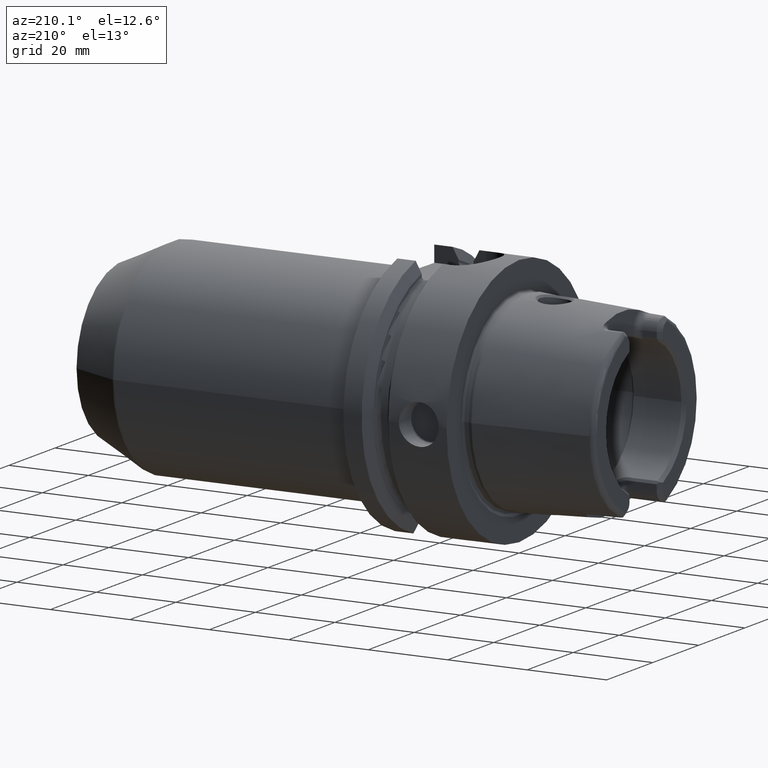
[diagram: clean part render]
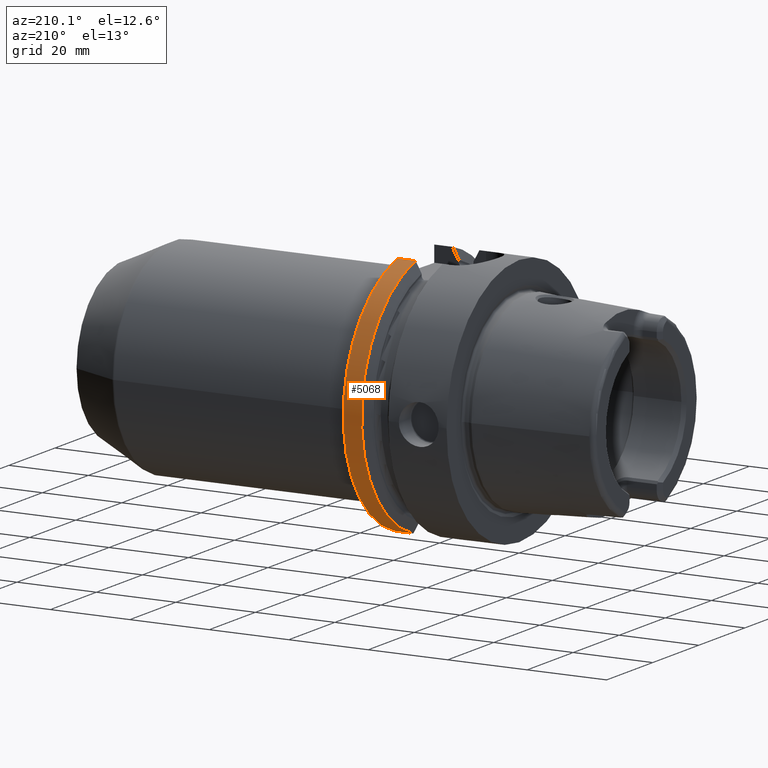
[diagram: same view with one face highlighted and labeled with its STEP entity id]
A machine part, auxiliary view. The second image highlights one B-rep face of the part: STEP entity #5068.
In plain terms, the highlighted cylindrical surface (partial cylindrical patch) has radius 31.5 mm, axis along (1, 0, 0).
Its self-contained STEP definition (entity closure, byte-faithful):
#1324=DIRECTION('',(-1.E0,0.E0,0.E0));
#1325=VECTOR('',#1324,4.622500925241E0);
#1326=CARTESIAN_POINT('',(2.6E1,9.0175E0,-3.018169467989E1));
#1327=LINE('',#1326,#1325);
#1624=DIRECTION('',(1.E0,0.E0,0.E0));
#1625=VECTOR('',#1624,4.622500925241E0);
#1626=CARTESIAN_POINT('',(2.137749907476E1,8.0175E0,3.046259499370E1));
#1627=LINE('',#1626,#1625);
#1632=CARTESIAN_POINT('',(2.6E1,0.E0,0.E0));
#1633=DIRECTION('',(1.E0,0.E0,0.E0));
#1634=DIRECTION('',(0.E0,2.862698412698E-1,-9.581490374568E-1));
#1635=AXIS2_PLACEMENT_3D('',#1632,#1633,#1634);
#1743=CARTESIAN_POINT('',(2.137749907476E1,9.0175E0,-3.018169467989E1));
#1750=CARTESIAN_POINT('',(2.137749907476E1,0.E0,0.E0));
#1751=DIRECTION('',(1.E0,0.E0,0.E0));
#1752=DIRECTION('',(0.E0,2.862698412698E-1,-9.581490374568E-1));
#1753=AXIS2_PLACEMENT_3D('',#1750,#1751,#1752);
#1760=CARTESIAN_POINT('',(2.137749907476E1,8.0175E0,3.046259499370E1));
#3187=VERTEX_POINT('',#1760);
#3216=VERTEX_POINT('',#1743);
#3218=CARTESIAN_POINT('',(2.6E1,9.0175E0,-3.018169467989E1));
#3219=CARTESIAN_POINT('',(2.6E1,8.0175E0,3.046259499370E1));
#3220=VERTEX_POINT('',#3218);
#3221=VERTEX_POINT('',#3219);
#5056=CARTESIAN_POINT('',(-3.49E1,0.E0,0.E0));
#5057=DIRECTION('',(1.E0,0.E0,0.E0));
#5058=DIRECTION('',(0.E0,-1.E0,0.E0));
#5059=AXIS2_PLACEMENT_3D('',#5056,#5057,#5058);
#5060=CYLINDRICAL_SURFACE('',#5059,3.15E1);
#5061=ORIENTED_EDGE('',*,*,#4704,.F.);
#5062=ORIENTED_EDGE('',*,*,#4872,.T.);
#5063=ORIENTED_EDGE('',*,*,#5028,.F.);
#5065=ORIENTED_EDGE('',*,*,#5064,.F.);
#5066=EDGE_LOOP('',(#5061,#5062,#5063,#5065));
#5067=FACE_OUTER_BOUND('',#5066,.F.);
#5068=ADVANCED_FACE('',(#5067),#5060,.T.);
#1636=CIRCLE('',#1635,3.15E1);
#1754=CIRCLE('',#1753,3.15E1);
#4704=EDGE_CURVE('',#3220,#3216,#1327,.T.);
#4872=EDGE_CURVE('',#3220,#3221,#1636,.T.);
#5028=EDGE_CURVE('',#3187,#3221,#1627,.T.);
#5064=EDGE_CURVE('',#3216,#3187,#1754,.T.);